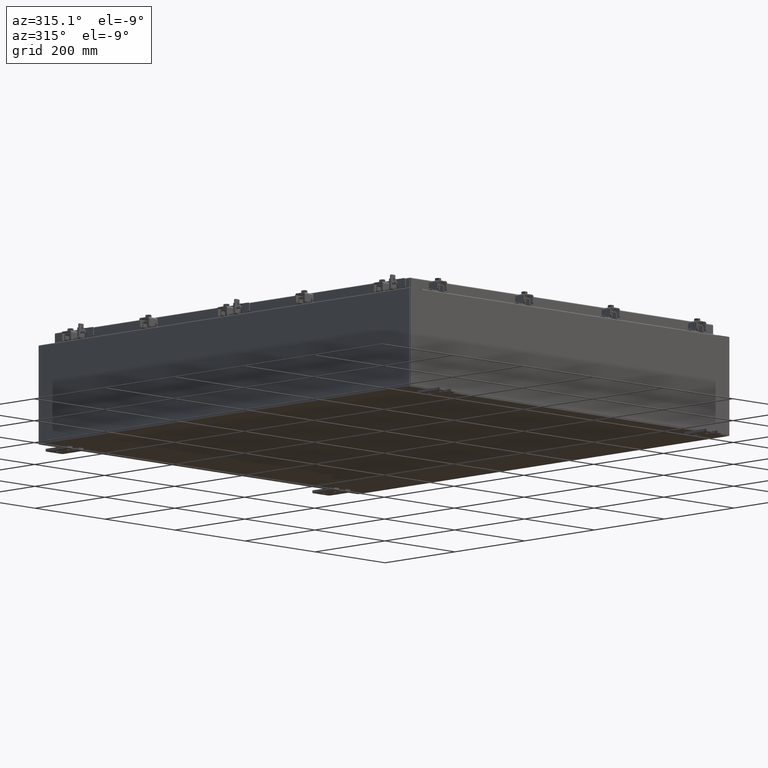
[diagram: clean part render]
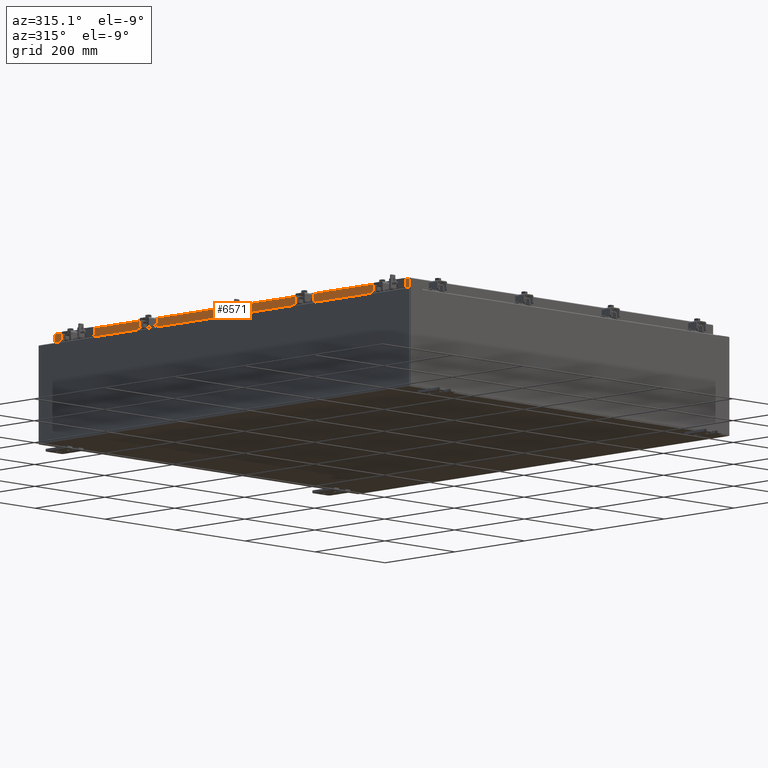
[diagram: same view with one face highlighted and labeled with its STEP entity id]
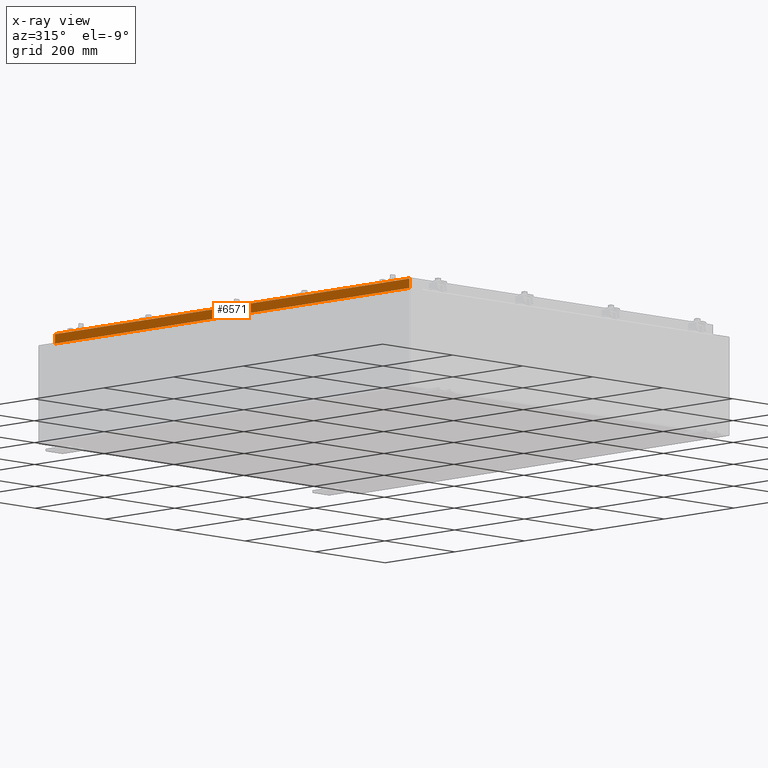
[diagram: x-ray of the same camera — body ghosted, the highlighted face saturated]
A machine part, auxiliary view. The second image highlights one B-rep face of the part: STEP entity #6571.
The next image is the same camera in x-ray: the body ghosted, the highlighted face saturated — about 0% of this face is hidden behind the body in this view.
In plain terms, the highlighted planar face has unit normal (1, 0, -0).
Its self-contained STEP definition (entity closure, byte-faithful):
#2 = FACE_OUTER_BOUND ( 'NONE', #9782, .T. ) ;
#212 = CARTESIAN_POINT ( 'NONE',  ( -17.07800000000000300, -20.09400000000000100, -0.8499999999999996400 ) ) ;
#424 = LINE ( 'NONE', #212, #23451 ) ;
#1354 = VECTOR ( 'NONE', #8529, 39.37007874015748100 ) ;
#1852 = ORIENTED_EDGE ( 'NONE', *, *, #21584, .F. ) ;
#2003 = LINE ( 'NONE', #23280, #1354 ) ;
#2650 = DIRECTION ( 'NONE',  ( -2.818880942772360100E-015, 0.0000000000000000000, -1.000000000000000000 ) ) ;
#3218 = VERTEX_POINT ( 'NONE', #23116 ) ;
#4526 = ORIENTED_EDGE ( 'NONE', *, *, #18634, .F. ) ;
#5375 = LINE ( 'NONE', #15908, #10299 ) ;
#6463 = EDGE_CURVE ( 'NONE', #26724, #10464, #2003, .T. ) ;
#6571 = ADVANCED_FACE ( 'NONE', ( #2 ), #13092, .F. ) ;
#7618 = CARTESIAN_POINT ( 'NONE',  ( -17.07799999999998900, 19.25515786437628000, -0.8500000000000019800 ) ) ;
#7810 = DIRECTION ( 'NONE',  ( 4.379057701015054300E-047, 1.000000000000000000, 1.189592412887544000E-016 ) ) ;
#8462 = VERTEX_POINT ( 'NONE', #18030 ) ;
#8466 = VECTOR ( 'NONE', #7810, 39.37007874015748100 ) ;
#8529 = DIRECTION ( 'NONE',  ( -2.818880942772360100E-015, 6.982962677686265900E-015, -1.000000000000000000 ) ) ;
#8737 = VERTEX_POINT ( 'NONE', #23445 ) ;
#8894 = CARTESIAN_POINT ( 'NONE',  ( -17.07800000000000300, -5.726798841186357800E-030, 4.840166239667795300E-014 ) ) ;
#9087 = VERTEX_POINT ( 'NONE', #7618 ) ;
#9664 = DIRECTION ( 'NONE',  ( -0.0000000000000000000, 1.000000000000000000, -0.0000000000000000000 ) ) ;
#9782 = EDGE_LOOP ( 'NONE', ( #22734, #12839, #21227, #4526, #1852, #11067 ) ) ;
#10006 = CARTESIAN_POINT ( 'NONE',  ( -17.07800000000000300, -20.09400000000000100, -0.08770000000000007000 ) ) ;
#10299 = VECTOR ( 'NONE', #26396, 39.37007874015748100 ) ;
#10331 = VECTOR ( 'NONE', #9664, 39.37007874015748100 ) ;
#10464 = VERTEX_POINT ( 'NONE', #20261 ) ;
#11067 = ORIENTED_EDGE ( 'NONE', *, *, #19142, .F. ) ;
#11700 = CARTESIAN_POINT ( 'NONE',  ( -17.07799999999998900, -19.25515786437626500, -0.8500000000000019800 ) ) ;
#12839 = ORIENTED_EDGE ( 'NONE', *, *, #6463, .T. ) ;
#13092 = PLANE ( 'NONE',  #26062 ) ;
#14036 = CARTESIAN_POINT ( 'NONE',  ( -17.07800000000000300, -20.09400000000000100, -0.8499999999999996400 ) ) ;
#14059 = LINE ( 'NONE', #14036, #8466 ) ;
#15243 = DIRECTION ( 'NONE',  ( 1.000000000000000000, 3.353319382355285900E-031, -2.818880942772360100E-015 ) ) ;
#15908 = CARTESIAN_POINT ( 'NONE',  ( -17.07800000000000300, -20.00515786437626900, -0.07469999999999978000 ) ) ;
#17025 = DIRECTION ( 'NONE',  ( 4.379057701015054300E-047, 1.000000000000000000, 1.189592412887544000E-016 ) ) ;
#18030 = CARTESIAN_POINT ( 'NONE',  ( -17.07800000000000300, -20.00515786437626500, -0.8499999999999996400 ) ) ;
#18634 = EDGE_CURVE ( 'NONE', #3218, #9087, #27141, .T. ) ;
#19014 = LINE ( 'NONE', #10006, #25262 ) ;
#19142 = EDGE_CURVE ( 'NONE', #8737, #8462, #5375, .T. ) ;
#20261 = CARTESIAN_POINT ( 'NONE',  ( -17.07800000000000300, 20.00515786437628000, -0.8499999999999948700 ) ) ;
#21227 = ORIENTED_EDGE ( 'NONE', *, *, #26189, .F. ) ;
#21584 = EDGE_CURVE ( 'NONE', #8462, #3218, #14059, .T. ) ;
#21611 = EDGE_CURVE ( 'NONE', #26724, #8737, #19014, .T. ) ;
#22734 = ORIENTED_EDGE ( 'NONE', *, *, #21611, .F. ) ;
#23116 = CARTESIAN_POINT ( 'NONE',  ( -17.07799999999998900, -19.25515786437626200, -0.8500000000000019800 ) ) ;
#23280 = CARTESIAN_POINT ( 'NONE',  ( -17.07800000000000300, 20.00515786437627200, 1.880969331248393900E-013 ) ) ;
#23445 = CARTESIAN_POINT ( 'NONE',  ( -17.07800000000000300, -20.00515786437626900, -0.08770000000000007000 ) ) ;
#23451 = VECTOR ( 'NONE', #17025, 39.37007874015748100 ) ;
#24723 = DIRECTION ( 'NONE',  ( 3.353319382355286300E-031, -1.000000000000000000, -9.140369321716364000E-046 ) ) ;
#24843 = CARTESIAN_POINT ( 'NONE',  ( -17.07800000000000300, 20.00515786437626900, -0.08770000000000007000 ) ) ;
#25262 = VECTOR ( 'NONE', #24723, 39.37007874015748100 ) ;
#26062 = AXIS2_PLACEMENT_3D ( 'NONE', #8894, #15243, #2650 ) ;
#26189 = EDGE_CURVE ( 'NONE', #9087, #10464, #424, .T. ) ;
#26396 = DIRECTION ( 'NONE',  ( -2.818880942772360100E-015, 6.982962677686265900E-015, -1.000000000000000000 ) ) ;
#26724 = VERTEX_POINT ( 'NONE', #24843 ) ;
#27141 = LINE ( 'NONE', #11700, #10331 ) ;